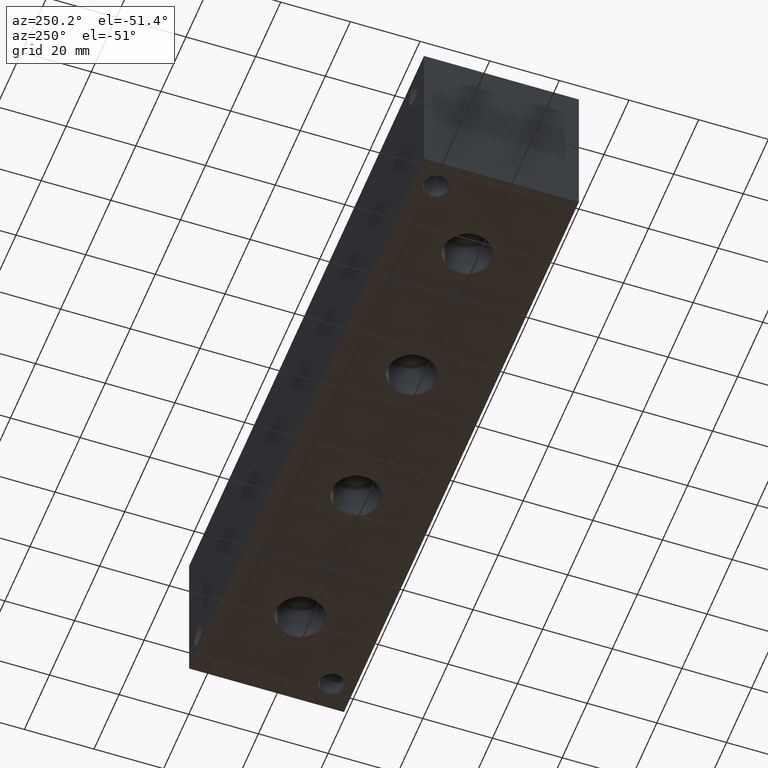
[diagram: clean part render]
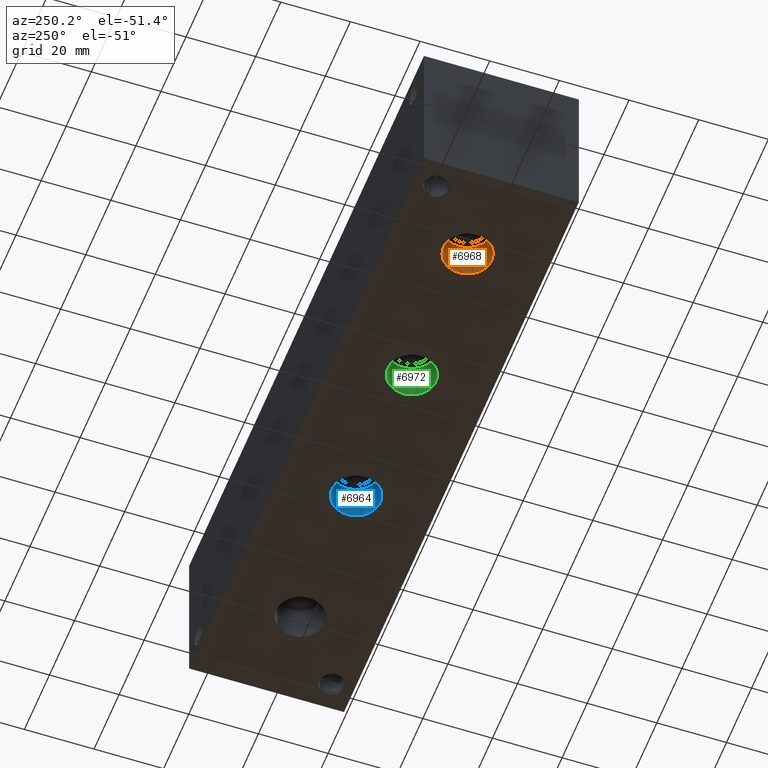
[diagram: same view with three faces highlighted in distinct colors, each labeled with its STEP entity id]
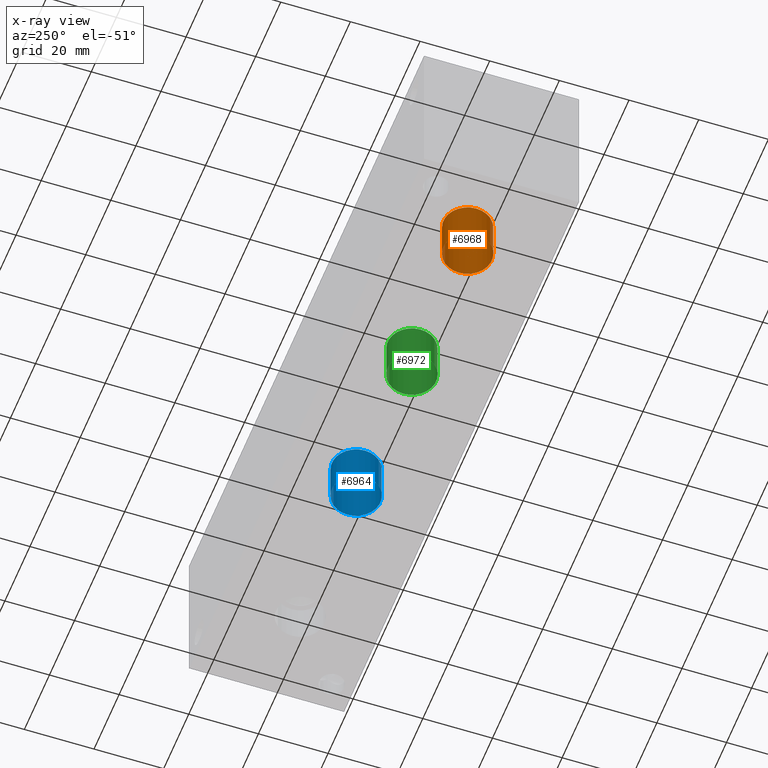
[diagram: x-ray of the same camera — body ghosted, the three highlighted faces saturated]
A machine part, auxiliary view with three faces highlighted in distinct colors.
The next image is the same camera in x-ray (body ghosted, the three faces saturated) — at least one of them is partly hidden behind the body in this view.
Their STEP definitions:

[orange] entity #6968 — the highlighted cylindrical surface (bore or boss wall) has radius 6.9342 mm, axis along (0, 0, -1).
#24=CYLINDRICAL_SURFACE('',#7293,6.9342);
#87=CIRCLE('',#7290,6.9342);
#88=CIRCLE('',#7291,6.9342);
#90=CIRCLE('',#7294,6.9342);
#91=CIRCLE('',#7295,6.9342);
#764=FACE_OUTER_BOUND('',#1155,.T.);
#1155=EDGE_LOOP('',(#6034,#6035,#6036,#6037,#6038,#6039));
#1902=LINE('',#11504,#2617);
#2617=VECTOR('',#8614,6.9342);
#3358=VERTEX_POINT('',#11493);
#3359=VERTEX_POINT('',#11494);
#3361=VERTEX_POINT('',#11500);
#3362=VERTEX_POINT('',#11501);
#4275=EDGE_CURVE('',#3358,#3359,#87,.T.);
#4276=EDGE_CURVE('',#3359,#3358,#88,.T.);
#4278=EDGE_CURVE('',#3361,#3362,#90,.T.);
#4279=EDGE_CURVE('',#3362,#3361,#91,.T.);
#4280=EDGE_CURVE('',#3362,#3359,#1902,.T.);
#6034=ORIENTED_EDGE('',*,*,#4278,.F.);
#6035=ORIENTED_EDGE('',*,*,#4279,.F.);
#6036=ORIENTED_EDGE('',*,*,#4280,.T.);
#6037=ORIENTED_EDGE('',*,*,#4275,.F.);
#6038=ORIENTED_EDGE('',*,*,#4276,.F.);
#6039=ORIENTED_EDGE('',*,*,#4280,.F.);
#6968=ADVANCED_FACE('',(#764),#24,.F.);
#7290=AXIS2_PLACEMENT_3D('',#11495,#8602,#8603);
#7291=AXIS2_PLACEMENT_3D('',#11496,#8604,#8605);
#7293=AXIS2_PLACEMENT_3D('',#11499,#8608,#8609);
#7294=AXIS2_PLACEMENT_3D('',#11502,#8610,#8611);
#7295=AXIS2_PLACEMENT_3D('',#11503,#8612,#8613);
#8602=DIRECTION('center_axis',(0.,0.,-1.));
#8603=DIRECTION('ref_axis',(1.,0.,0.));
#8604=DIRECTION('center_axis',(0.,0.,-1.));
#8605=DIRECTION('ref_axis',(1.,0.,0.));
#8608=DIRECTION('center_axis',(0.,0.,-1.));
#8609=DIRECTION('ref_axis',(1.,0.,0.));
#8610=DIRECTION('center_axis',(0.,0.,1.));
#8611=DIRECTION('ref_axis',(1.,0.,0.));
#8612=DIRECTION('center_axis',(0.,0.,1.));
#8613=DIRECTION('ref_axis',(1.,0.,0.));
#8614=DIRECTION('',(0.,0.,1.));
#11493=CARTESIAN_POINT('',(33.909,22.225,11.4046));
#11494=CARTESIAN_POINT('',(20.0406,22.225,11.4046));
#11495=CARTESIAN_POINT('Origin',(26.9748,22.225,11.4046));
#11496=CARTESIAN_POINT('Origin',(26.9748,22.225,11.4046));
#11499=CARTESIAN_POINT('Origin',(26.9748,22.225,5.7023));
#11500=CARTESIAN_POINT('',(33.909,22.225,0.));
#11501=CARTESIAN_POINT('',(20.0406,22.225,0.));
#11502=CARTESIAN_POINT('Origin',(26.9748,22.225,0.));
#11503=CARTESIAN_POINT('Origin',(26.9748,22.225,0.));
#11504=CARTESIAN_POINT('',(20.0406,22.225,5.7023));

[blue] entity #6964 — the highlighted cylindrical surface (bore or boss wall) has radius 6.9342 mm, axis along (0, 0, -1).
#22=CYLINDRICAL_SURFACE('',#7282,6.9342);
#80=CIRCLE('',#7279,6.9342);
#81=CIRCLE('',#7280,6.9342);
#83=CIRCLE('',#7283,6.9342);
#84=CIRCLE('',#7284,6.9342);
#760=FACE_OUTER_BOUND('',#1150,.T.);
#1150=EDGE_LOOP('',(#6016,#6017,#6018,#6019,#6020,#6021));
#1899=LINE('',#11482,#2614);
#2614=VECTOR('',#8589,6.9342);
#3350=VERTEX_POINT('',#11471);
#3351=VERTEX_POINT('',#11472);
#3353=VERTEX_POINT('',#11478);
#3354=VERTEX_POINT('',#11479);
#4265=EDGE_CURVE('',#3350,#3351,#80,.T.);
#4266=EDGE_CURVE('',#3351,#3350,#81,.T.);
#4268=EDGE_CURVE('',#3353,#3354,#83,.T.);
#4269=EDGE_CURVE('',#3354,#3353,#84,.T.);
#4270=EDGE_CURVE('',#3354,#3351,#1899,.T.);
#6016=ORIENTED_EDGE('',*,*,#4268,.F.);
#6017=ORIENTED_EDGE('',*,*,#4269,.F.);
#6018=ORIENTED_EDGE('',*,*,#4270,.T.);
#6019=ORIENTED_EDGE('',*,*,#4265,.F.);
#6020=ORIENTED_EDGE('',*,*,#4266,.F.);
#6021=ORIENTED_EDGE('',*,*,#4270,.F.);
#6964=ADVANCED_FACE('',(#760),#22,.F.);
#7279=AXIS2_PLACEMENT_3D('',#11473,#8577,#8578);
#7280=AXIS2_PLACEMENT_3D('',#11474,#8579,#8580);
#7282=AXIS2_PLACEMENT_3D('',#11477,#8583,#8584);
#7283=AXIS2_PLACEMENT_3D('',#11480,#8585,#8586);
#7284=AXIS2_PLACEMENT_3D('',#11481,#8587,#8588);
#8577=DIRECTION('center_axis',(0.,0.,-1.));
#8578=DIRECTION('ref_axis',(1.,0.,0.));
#8579=DIRECTION('center_axis',(0.,0.,-1.));
#8580=DIRECTION('ref_axis',(1.,0.,0.));
#8583=DIRECTION('center_axis',(0.,0.,-1.));
#8584=DIRECTION('ref_axis',(1.,0.,0.));
#8585=DIRECTION('center_axis',(0.,0.,1.));
#8586=DIRECTION('ref_axis',(1.,0.,0.));
#8587=DIRECTION('center_axis',(0.,0.,1.));
#8588=DIRECTION('ref_axis',(1.,0.,0.));
#8589=DIRECTION('',(0.,0.,1.));
#11471=CARTESIAN_POINT('',(122.809,22.225,11.4046));
#11472=CARTESIAN_POINT('',(108.9406,22.225,11.4046));
#11473=CARTESIAN_POINT('Origin',(115.8748,22.225,11.4046));
#11474=CARTESIAN_POINT('Origin',(115.8748,22.225,11.4046));
#11477=CARTESIAN_POINT('Origin',(115.8748,22.225,5.7023));
#11478=CARTESIAN_POINT('',(122.809,22.225,0.));
#11479=CARTESIAN_POINT('',(108.9406,22.225,0.));
#11480=CARTESIAN_POINT('Origin',(115.8748,22.225,0.));
#11481=CARTESIAN_POINT('Origin',(115.8748,22.225,0.));
#11482=CARTESIAN_POINT('',(108.9406,22.225,5.7023));

[green] entity #6972 — the highlighted cylindrical surface (bore or boss wall) has radius 6.9342 mm, axis along (0, 0, -1).
#26=CYLINDRICAL_SURFACE('',#7304,6.9342);
#94=CIRCLE('',#7301,6.9342);
#95=CIRCLE('',#7302,6.9342);
#97=CIRCLE('',#7305,6.9342);
#98=CIRCLE('',#7306,6.9342);
#768=FACE_OUTER_BOUND('',#1160,.T.);
#1160=EDGE_LOOP('',(#6052,#6053,#6054,#6055,#6056,#6057));
#1905=LINE('',#11526,#2620);
#2620=VECTOR('',#8639,6.9342);
#3366=VERTEX_POINT('',#11515);
#3367=VERTEX_POINT('',#11516);
#3369=VERTEX_POINT('',#11522);
#3370=VERTEX_POINT('',#11523);
#4285=EDGE_CURVE('',#3366,#3367,#94,.T.);
#4286=EDGE_CURVE('',#3367,#3366,#95,.T.);
#4288=EDGE_CURVE('',#3369,#3370,#97,.T.);
#4289=EDGE_CURVE('',#3370,#3369,#98,.T.);
#4290=EDGE_CURVE('',#3370,#3367,#1905,.T.);
#6052=ORIENTED_EDGE('',*,*,#4288,.F.);
#6053=ORIENTED_EDGE('',*,*,#4289,.F.);
#6054=ORIENTED_EDGE('',*,*,#4290,.T.);
#6055=ORIENTED_EDGE('',*,*,#4285,.F.);
#6056=ORIENTED_EDGE('',*,*,#4286,.F.);
#6057=ORIENTED_EDGE('',*,*,#4290,.F.);
#6972=ADVANCED_FACE('',(#768),#26,.F.);
#7301=AXIS2_PLACEMENT_3D('',#11517,#8627,#8628);
#7302=AXIS2_PLACEMENT_3D('',#11518,#8629,#8630);
#7304=AXIS2_PLACEMENT_3D('',#11521,#8633,#8634);
#7305=AXIS2_PLACEMENT_3D('',#11524,#8635,#8636);
#7306=AXIS2_PLACEMENT_3D('',#11525,#8637,#8638);
#8627=DIRECTION('center_axis',(0.,0.,-1.));
#8628=DIRECTION('ref_axis',(1.,0.,0.));
#8629=DIRECTION('center_axis',(0.,0.,-1.));
#8630=DIRECTION('ref_axis',(1.,0.,0.));
#8633=DIRECTION('center_axis',(0.,0.,-1.));
#8634=DIRECTION('ref_axis',(1.,0.,0.));
#8635=DIRECTION('center_axis',(0.,0.,1.));
#8636=DIRECTION('ref_axis',(1.,0.,0.));
#8637=DIRECTION('center_axis',(0.,0.,1.));
#8638=DIRECTION('ref_axis',(1.,0.,0.));
#8639=DIRECTION('',(0.,0.,1.));
#11515=CARTESIAN_POINT('',(78.359,22.225,11.4046));
#11516=CARTESIAN_POINT('',(64.4906,22.225,11.4046));
#11517=CARTESIAN_POINT('Origin',(71.4248,22.225,11.4046));
#11518=CARTESIAN_POINT('Origin',(71.4248,22.225,11.4046));
#11521=CARTESIAN_POINT('Origin',(71.4248,22.225,5.7023));
#11522=CARTESIAN_POINT('',(78.359,22.225,0.));
#11523=CARTESIAN_POINT('',(64.4906,22.225,0.));
#11524=CARTESIAN_POINT('Origin',(71.4248,22.225,0.));
#11525=CARTESIAN_POINT('Origin',(71.4248,22.225,0.));
#11526=CARTESIAN_POINT('',(64.4906,22.225,5.7023));